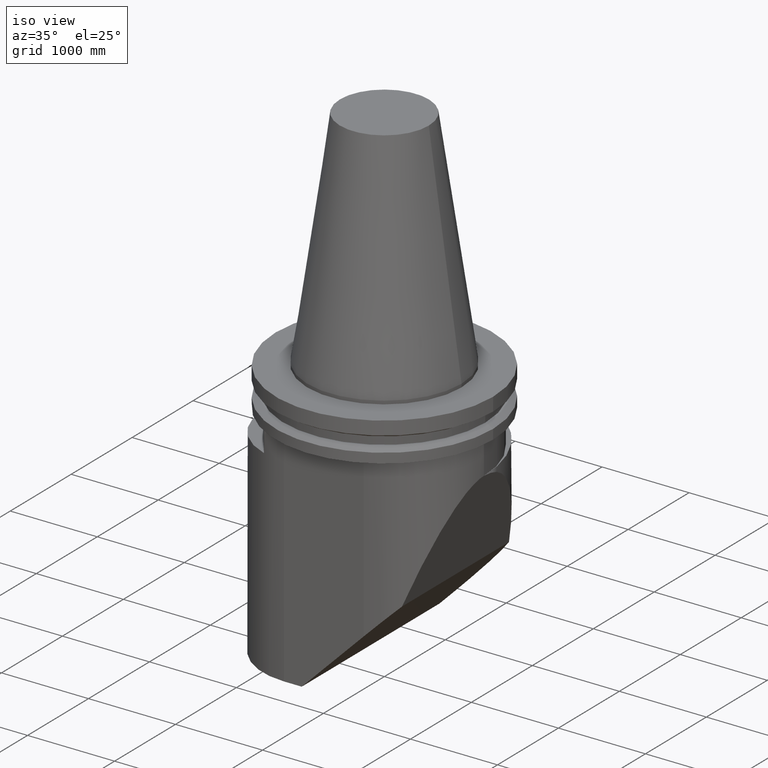
[diagram: clean part render]
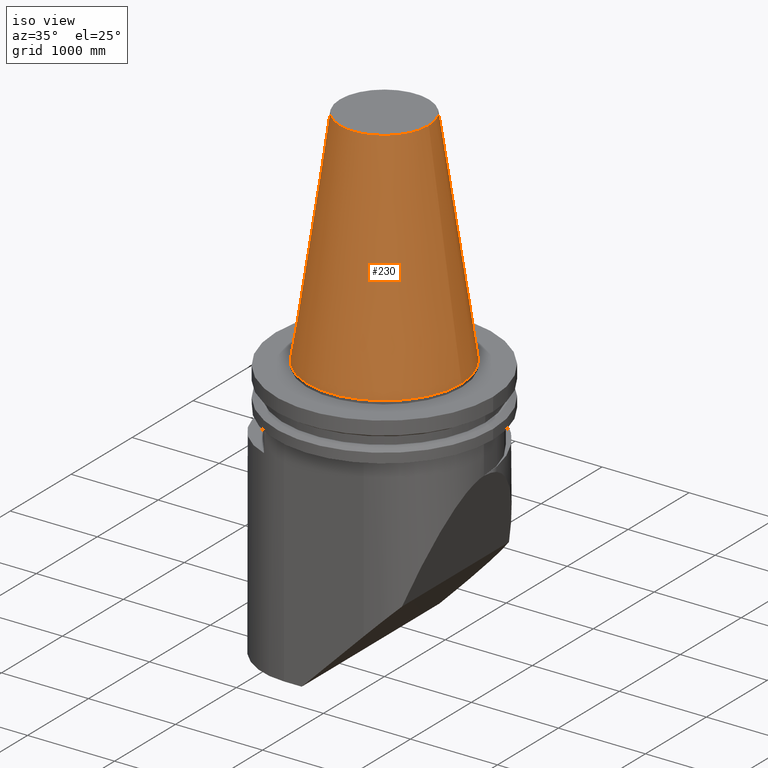
[diagram: same view with one face highlighted and labeled with its STEP entity id]
A machine part, iso view. The second image highlights one B-rep face of the part: STEP entity #230.
In plain terms, the highlighted conical surface has half-angle 8.297 deg.
Its self-contained STEP definition (entity closure, byte-faithful):
#162=EDGE_CURVE('Unnamed[1]',#426,#426,#427,.T.);
#195=EDGE_CURVE('Unnamed[1]',#476,#476,#477,.T.);
#230=ADVANCED_FACE('Unnamed[1]',(#522,#523),#524,.T.);
#426=VERTEX_POINT('',#767);
#427=CIRCLE('',#768,34.925);
#476=VERTEX_POINT('',#835);
#477=CIRCLE('',#836,20.1083333297217);
#522=FACE_BOUND('',#906,.T.);
#523=FACE_BOUND('',#907,.T.);
#524=CONICAL_SURFACE('',#908,27.5166666648608,0.144812498273746);
#767=CARTESIAN_POINT('',(34.925,-1.49697763110775E-014,4.27707894602213E-015));
#768=AXIS2_PLACEMENT_3D('',#1231,#1232,#1233);
#835=CARTESIAN_POINT('',(20.1083333297217,-2.39775637728254E-015,101.6));
#836=AXIS2_PLACEMENT_3D('',#1290,#1291,#1292);
#906=EDGE_LOOP('',(#1344));
#907=EDGE_LOOP('',(#1345));
#908=AXIS2_PLACEMENT_3D('',#1346,#1347,#1348);
#1231=CARTESIAN_POINT('',(0.0,0.0,0.0));
#1232=DIRECTION('',(1.22464679914735E-016,-6.12323399573677E-017,-1.0));
#1233=DIRECTION('',(1.0,-4.28626379701574E-016,1.22464679914735E-016));
#1290=CARTESIAN_POINT('',(-1.24424114793371E-014,6.22120573966856E-015,101.6));
#1291=DIRECTION('',(1.22464679914735E-016,-6.12323399573678E-017,-1.0));
#1292=DIRECTION('',(1.0,-4.28626379701574E-016,1.22464679914735E-016));
#1344=ORIENTED_EDGE('',*,*,#162,.F.);
#1345=ORIENTED_EDGE('',*,*,#195,.T.);
#1346=CARTESIAN_POINT('',(-6.22120573966855E-015,3.11060286983428E-015,50.8));
#1347=DIRECTION('',(1.22464679914735E-016,-6.12323399573677E-017,-1.0));
#1348=DIRECTION('',(1.0,-4.28626379701574E-016,1.22464679914735E-016));